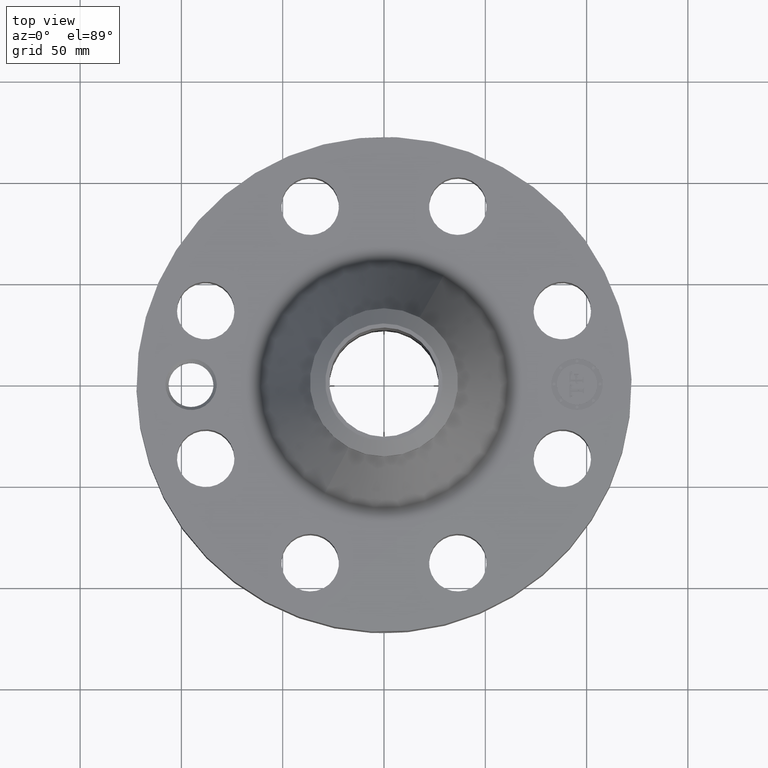
[diagram: clean part render]
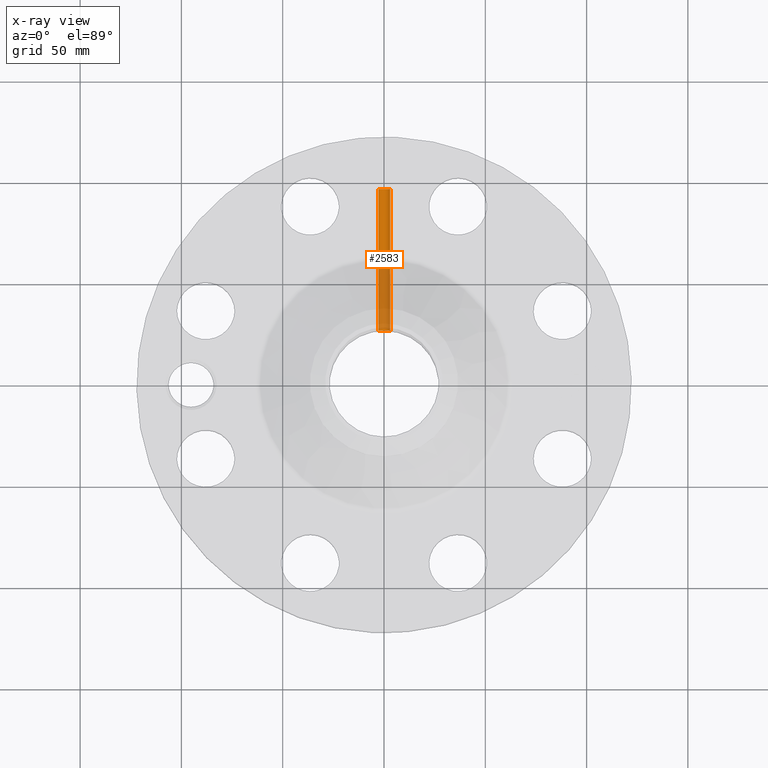
[diagram: x-ray — body ghosted, one internal face saturated and labeled with its STEP entity id]
A machine part, top view, then the same camera in x-ray: the body is ghosted and one INTERNAL B-rep face — a face not visible from any outside direction — is saturated and labeled: STEP entity #2583.
In plain terms, the highlighted cylindrical surface (edge-blend (fillet) strip) has radius 3.175 mm, axis along (-0, -1, 0).
Its self-contained STEP definition (entity closure, byte-faithful):
#2544=AXIS2_PLACEMENT_3D('Cylinder Axis2P3D',#2541,#2542,#2543) ;
#2574=AXIS2_PLACEMENT_3D('Circle Axis2P3D',#2572,#2573,$) ;
#1359=CARTESIAN_POINT('Control Point',(-0.109697820237,1.05682195201,0.880071807678)) ;
#1360=CARTESIAN_POINT('Control Point',(-0.103061384436,1.05751081217,0.867923893429)) ;
#1361=CARTESIAN_POINT('Control Point',(-0.0947462881462,1.05832126272,0.856699954857)) ;
#1362=CARTESIAN_POINT('Control Point',(-0.0849215893799,1.0591826268,0.846704410326)) ;
#1363=CARTESIAN_POINT('Control Point',(-0.0517050675876,1.06163148758,0.82119757871)) ;
#1364=CARTESIAN_POINT('Control Point',(-0.00992580702043,1.0630406886,0.81063545192)) ;
#1365=CARTESIAN_POINT('Control Point',(0.0193091124656,1.0628912039,0.811703984821)) ;
#1366=CARTESIAN_POINT('Control Point',(0.060224721129,1.06114643299,0.825277413961)) ;
#1367=CARTESIAN_POINT('Control Point',(0.0915134569195,1.05862340961,0.853154071986)) ;
#1368=CARTESIAN_POINT('Control Point',(0.100601022984,1.05777086531,0.863864925179)) ;
#1369=CARTESIAN_POINT('Control Point',(0.12057051747,1.05572426268,0.89543115166)) ;
#1370=CARTESIAN_POINT('Control Point',(0.128083380693,1.05473960095,0.932703719992)) ;
#1371=CARTESIAN_POINT('Control Point',(0.127191622429,1.05485902872,0.956742438167)) ;
#1372=CARTESIAN_POINT('Control Point',(0.120789137992,1.05567067636,0.979625671361)) ;
#1373=CARTESIAN_POINT('Control Point',(0.109697820237,1.05682195201,0.99992819233)) ;
#1374=CARTESIAN_POINT('Vertex',(-0.109697820237,1.05682195201,0.880071807678)) ;
#1376=CARTESIAN_POINT('Vertex',(0.109697820237,1.05682195201,0.99992819233)) ;
#2541=CARTESIAN_POINT('Axis2P3D Location',(-3.4974886485E-015,4.80606299215,0.940000000004)) ;
#2546=CARTESIAN_POINT('Line Origine',(-0.109697820237,2.43395734379,0.880071807678)) ;
#2550=CARTESIAN_POINT('Vertex',(-0.109697820237,3.81321662098,0.880071807678)) ;
#2557=CARTESIAN_POINT('Vertex',(0.109697820237,3.81321662098,0.99992819233)) ;
#2560=CARTESIAN_POINT('Line Origine',(0.109697820237,2.43395734379,0.99992819233)) ;
#2572=CARTESIAN_POINT('Axis2P3D Location',(-3.67987156808E-015,3.81321662098,0.940000000004)) ;
#2542=DIRECTION('Axis2P3D Direction',(-7.2321661367E-018,-0.0393700787402,0.)) ;
#2543=DIRECTION('Axis2P3D XDirection',(-0.0345504945627,6.34682288627E-018,-0.0188750212048)) ;
#2547=DIRECTION('Vector Direction',(-7.23643851323E-018,-0.0393700787402,0.)) ;
#2561=DIRECTION('Vector Direction',(-7.23643851323E-018,-0.0393700787402,0.)) ;
#2573=DIRECTION('Axis2P3D Direction',(-7.2321661367E-018,-0.0393700787402,0.)) ;
#2548=VECTOR('Line Direction',#2547,0.0393700787402) ;
#2562=VECTOR('Line Direction',#2561,0.0393700787402) ;
#2578=ORIENTED_EDGE('',*,*,#1378,.T.) ;
#2579=ORIENTED_EDGE('',*,*,#2564,.T.) ;
#2580=ORIENTED_EDGE('',*,*,#2576,.F.) ;
#2581=ORIENTED_EDGE('',*,*,#2552,.F.) ;
#2583=ADVANCED_FACE('PartBody',(#2582),#2545,.F.) ;
#1358=B_SPLINE_CURVE_WITH_KNOTS('',5,(#1359,#1360,#1361,#1362,#1363,#1364,#1365,#1366,#1367,#1368,#1369,#1370,#1371,#1372,#1373),.UNSPECIFIED.,.F.,.U.,(6,3,3,3,6),(0.,2.48925591225,7.46346579581,9.95797161117,14.1182059787),.UNSPECIFIED.) ;
#2575=CIRCLE('generated circle',#2574,0.125000000001) ;
#2545=CYLINDRICAL_SURFACE('generated cylinder',#2544,0.125000000001) ;
#1378=EDGE_CURVE('',#1375,#1377,#1358,.T.) ;
#2552=EDGE_CURVE('',#1375,#2551,#2549,.F.) ;
#2564=EDGE_CURVE('',#1377,#2558,#2563,.F.) ;
#2576=EDGE_CURVE('',#2551,#2558,#2575,.T.) ;
#2577=EDGE_LOOP('',(#2578,#2579,#2580,#2581)) ;
#2582=FACE_OUTER_BOUND('',#2577,.T.) ;
#2549=LINE('Line',#2546,#2548) ;
#2563=LINE('Line',#2560,#2562) ;
#1375=VERTEX_POINT('',#1374) ;
#1377=VERTEX_POINT('',#1376) ;
#2551=VERTEX_POINT('',#2550) ;
#2558=VERTEX_POINT('',#2557) ;